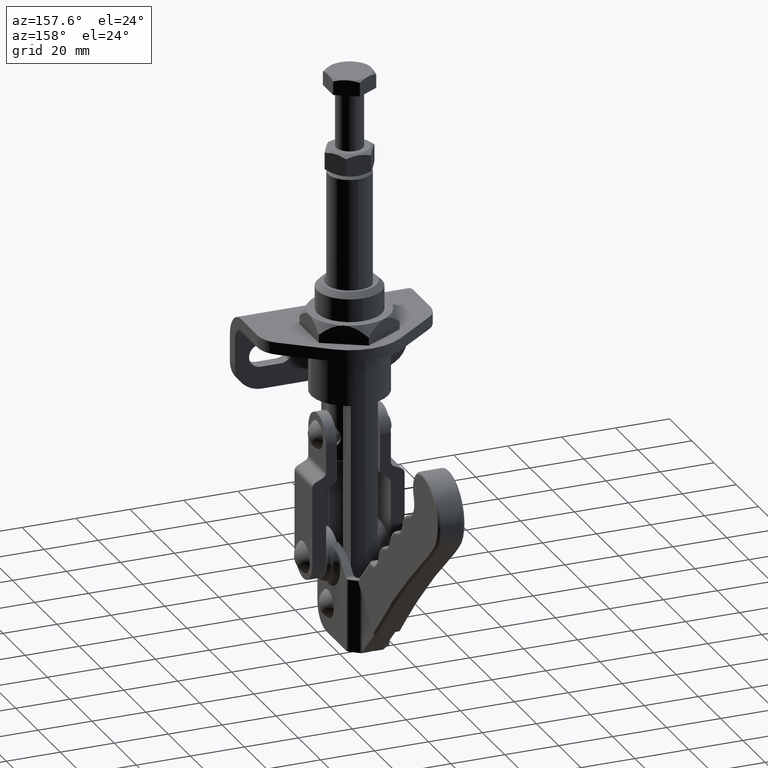
[diagram: clean part render]
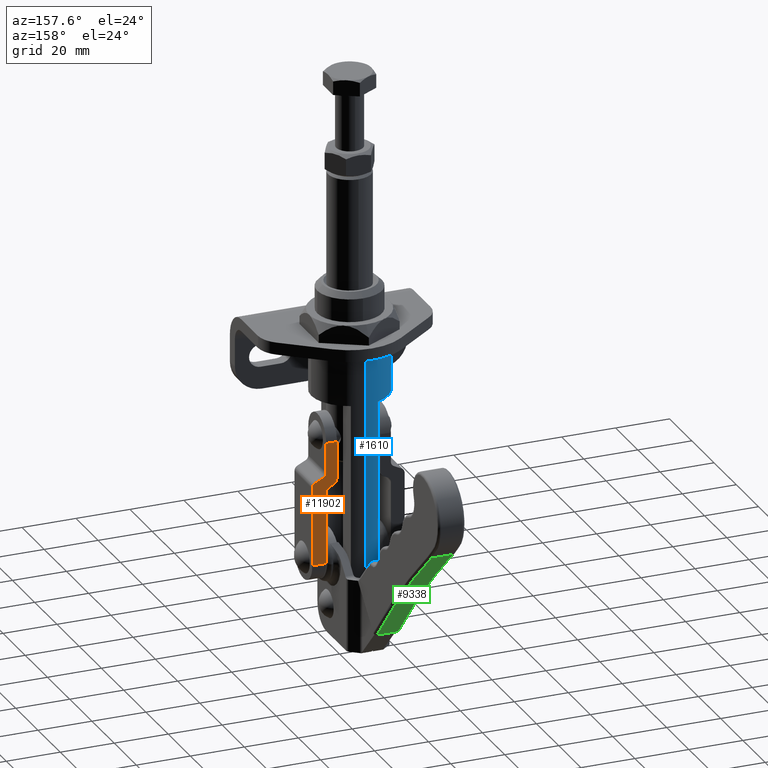
[diagram: same view with three faces highlighted in distinct colors, each labeled with its STEP entity id]
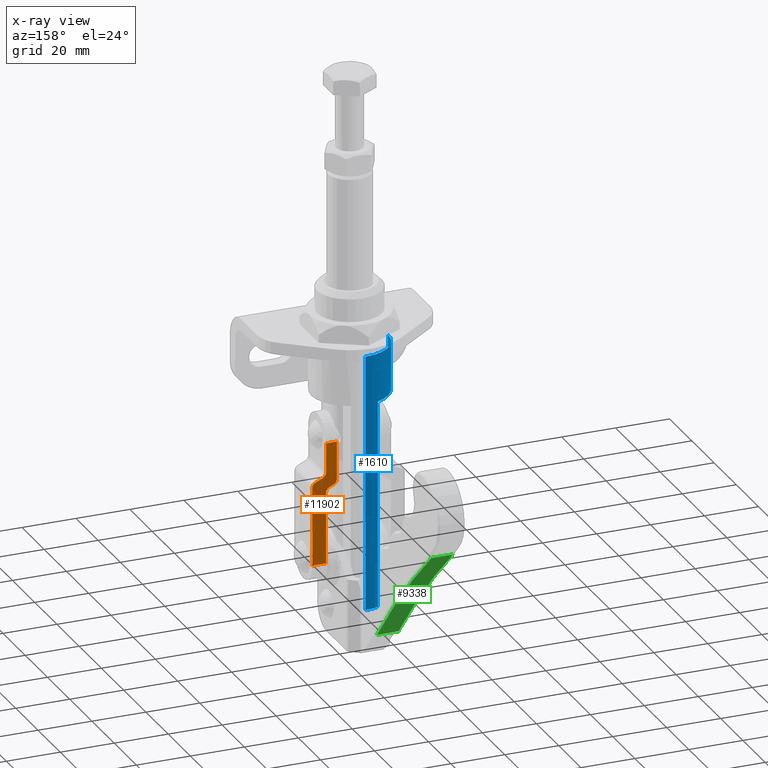
[diagram: x-ray of the same camera — body ghosted, the three highlighted faces saturated]
A machine part, auxiliary view with three faces highlighted in distinct colors.
The next image is the same camera in x-ray (body ghosted, the three faces saturated) — at least one of them is partly hidden behind the body in this view.
Their STEP definitions:

[orange] entity #11902 — the highlighted planar face has unit normal (-0, 1, 0).
#10155=CARTESIAN_POINT('',(11.999999999999995,5.917614629877216,-79.482214011970498));
#10156=VERTEX_POINT('',#10155);
#10164=CARTESIAN_POINT('',(17.099999999999916,5.917614629877216,-79.482214011970498));
#10165=VERTEX_POINT('',#10164);
#10166=CARTESIAN_POINT('',(11.999999999999995,5.917614629877216,-79.482214011970498));
#10167=DIRECTION('',(1.0,0.0,0.0));
#10168=VECTOR('',#10167,5.099999999999922);
#10169=LINE('',#10166,#10168);
#10170=EDGE_CURVE('',#10156,#10165,#10169,.T.);
#11311=CARTESIAN_POINT('',(8.305367358774088,7.296457354299946,-49.595314481743422));
#11312=VERTEX_POINT('',#11311);
#11319=CARTESIAN_POINT('',(9.128220211291660,7.262453801740220,-50.332353406504630));
#11320=VERTEX_POINT('',#11319);
#11321=CARTESIAN_POINT('',(9.999999999999830,7.345409203869990,-48.534265977802391));
#11322=DIRECTION('',(-3.122502E-017,-0.998937460390203,0.046086334516543));
#11323=DIRECTION('',(-0.744527728718017,0.030766846925521,0.666882195219105));
#11324=AXIS2_PLACEMENT_3D('',#11321,#11322,#11323);
#11325=CIRCLE('',#11324,1.999999999999890);
#11326=EDGE_CURVE('',#11312,#11320,#11325,.T.);
#11353=CARTESIAN_POINT('',(16.794632641225824,7.306129356875594,-49.385670434518573));
#11354=VERTEX_POINT('',#11353);
#11361=CARTESIAN_POINT('',(15.971779788708000,7.340132909435333,-48.648631509757116));
#11362=VERTEX_POINT('',#11361);
#11363=CARTESIAN_POINT('',(15.100000000000051,7.257177507305549,-50.446718938459640));
#11364=DIRECTION('',(-3.122502E-017,-0.998937460390203,0.046086334516543));
#11365=DIRECTION('',(0.744527728718073,-0.030766846925518,-0.666882195219043));
#11366=AXIS2_PLACEMENT_3D('',#11363,#11364,#11365);
#11367=CIRCLE('',#11366,1.999999999999938);
#11368=EDGE_CURVE('',#11354,#11362,#11367,.T.);
#11393=CARTESIAN_POINT('',(11.694632641225777,7.189532900033186,-51.912939520039885));
#11394=VERTEX_POINT('',#11393);
#11412=CARTESIAN_POINT('',(10.871779788708078,7.223536452592913,-51.175900595278669));
#11413=VERTEX_POINT('',#11412);
#11420=CARTESIAN_POINT('',(9.999999999999842,7.140581050463137,-52.973988023980993));
#11421=DIRECTION('',(3.122502E-017,0.998937460390203,-0.046086334516543));
#11422=DIRECTION('',(-0.744527728717995,0.030766846925522,0.666882195219129));
#11423=AXIS2_PLACEMENT_3D('',#11420,#11421,#11422);
#11424=CIRCLE('',#11423,2.000000000000211);
#11425=EDGE_CURVE('',#11413,#11394,#11424,.T.);
#11435=CARTESIAN_POINT('',(12.305367358774093,7.437606504733410,-46.535857153462587));
#11436=VERTEX_POINT('',#11435);
#11454=CARTESIAN_POINT('',(13.128220211291666,7.403602952173671,-47.272896078224051));
#11455=VERTEX_POINT('',#11454);
#11462=CARTESIAN_POINT('',(13.999999999999886,7.486558354303456,-45.474808649521492));
#11463=DIRECTION('',(2.428613E-017,0.998937460390203,-0.046086334516543));
#11464=DIRECTION('',(0.744527728718035,-0.030766846925520,-0.666882195219084));
#11465=AXIS2_PLACEMENT_3D('',#11462,#11463,#11464);
#11466=CIRCLE('',#11465,1.999999999999965);
#11467=EDGE_CURVE('',#11455,#11436,#11466,.T.);
#11478=CARTESIAN_POINT('',(12.0,7.486558354303456,-45.474808649521506));
#11479=VERTEX_POINT('',#11478);
#11480=CARTESIAN_POINT('',(13.999999999999860,7.486558354303456,-45.474808649521520));
#11481=DIRECTION('',(3.469447E-017,0.998937460390203,-0.046086334516543));
#11482=DIRECTION('',(0.276300270889376,-0.044292256222259,-0.960050184284759));
#11483=AXIS2_PLACEMENT_3D('',#11480,#11481,#11482);
#11484=CIRCLE('',#11483,1.999999999999927);
#11485=EDGE_CURVE('',#11436,#11479,#11484,.T.);
#11518=CARTESIAN_POINT('',(15.971779788708000,7.340132909435333,-48.648631509757116));
#11519=DIRECTION('',(-0.900000000000029,0.020088567483579,0.435426744075746));
#11520=VECTOR('',#11519,3.159510641573603);
#11521=LINE('',#11518,#11520);
#11522=EDGE_CURVE('',#11362,#11455,#11521,.T.);
#11533=CARTESIAN_POINT('',(11.999999999999996,7.140581050463140,-52.973988023980951));
#11534=VERTEX_POINT('',#11533);
#11535=CARTESIAN_POINT('',(9.999999999999872,7.140581050463140,-52.973988023980951));
#11536=DIRECTION('',(3.469447E-017,0.998937460390204,-0.046086334516543));
#11537=DIRECTION('',(-0.276300270889377,0.044292256222259,0.960050184284759));
#11538=AXIS2_PLACEMENT_3D('',#11535,#11536,#11537);
#11539=CIRCLE('',#11538,2.000000000000159);
#11540=EDGE_CURVE('',#11394,#11534,#11539,.T.);
#11573=CARTESIAN_POINT('',(9.128220211291660,7.262453801740220,-50.332353406504630));
#11574=DIRECTION('',(0.899999999999996,-0.020088567483582,-0.435426744075814));
#11575=VECTOR('',#11574,1.937288419351583);
#11576=LINE('',#11573,#11575);
#11577=EDGE_CURVE('',#11320,#11413,#11576,.T.);
#11597=CARTESIAN_POINT('',(17.099999999999920,7.257177507305547,-50.446718938459647));
#11598=VERTEX_POINT('',#11597);
#11605=CARTESIAN_POINT('',(15.100000000000058,7.257177507305547,-50.446718938459647));
#11606=DIRECTION('',(-3.642919E-017,-0.998937460390204,0.046086334516543));
#11607=DIRECTION('',(0.276300270889378,-0.044292256222259,-0.960050184284758));
#11608=AXIS2_PLACEMENT_3D('',#11605,#11606,#11607);
#11609=CIRCLE('',#11608,1.999999999999933);
#11610=EDGE_CURVE('',#11598,#11354,#11609,.T.);
#11637=CARTESIAN_POINT('',(17.099999999999916,5.917614629877216,-79.482214011970498));
#11638=DIRECTION('',(1.222276E-016,0.046086334516543,0.998937460390203));
#11639=VECTOR('',#11638,29.066379252780301);
#11640=LINE('',#11637,#11639);
#11641=EDGE_CURVE('',#10165,#11598,#11640,.T.);
#11673=CARTESIAN_POINT('',(11.999999999999996,7.140581050463140,-52.973988023980951));
#11674=DIRECTION('',(-6.694033E-017,-0.046086334516543,-0.998937460390203));
#11675=VECTOR('',#11674,26.536421987453494);
#11676=LINE('',#11673,#11675);
#11677=EDGE_CURVE('',#11534,#10156,#11676,.T.);
#11727=CARTESIAN_POINT('',(12.000000000000002,7.991499683121635,-34.530028294411501));
#11728=VERTEX_POINT('',#11727);
#11729=CARTESIAN_POINT('',(12.0,7.486558354303456,-45.474808649521506));
#11730=DIRECTION('',(1.621293E-016,0.046086334516543,0.998937460390203));
#11731=VECTOR('',#11730,10.956421987453320);
#11732=LINE('',#11729,#11731);
#11733=EDGE_CURVE('',#11479,#11728,#11732,.T.);
#11849=CARTESIAN_POINT('',(7.999999999999997,7.345409203869993,-48.534265977802349));
#11850=VERTEX_POINT('',#11849);
#11857=CARTESIAN_POINT('',(9.999999999999885,7.345409203869991,-48.534265977802349));
#11858=DIRECTION('',(-3.469447E-017,-0.998937460390204,0.046086334516543));
#11859=DIRECTION('',(-0.276300270889376,0.044292256222259,0.960050184284759));
#11860=AXIS2_PLACEMENT_3D('',#11857,#11858,#11859);
#11861=CIRCLE('',#11860,1.999999999999962);
#11862=EDGE_CURVE('',#11850,#11312,#11861,.T.);
#11867=CARTESIAN_POINT('',(12.549999999999956,6.954557156499426,-57.006121153190996));
#11868=DIRECTION('',(3.200715E-017,0.998937460390203,-0.046086334516543));
#11869=DIRECTION('',(1.0,0.0,0.0));
#11870=AXIS2_PLACEMENT_3D('',#11867,#11868,#11869);
#11871=PLANE('',#11870);
#11872=ORIENTED_EDGE('',*,*,#11610,.F.);
#11873=ORIENTED_EDGE('',*,*,#11641,.F.);
#11874=ORIENTED_EDGE('',*,*,#10170,.F.);
#11875=ORIENTED_EDGE('',*,*,#11677,.F.);
#11876=ORIENTED_EDGE('',*,*,#11540,.F.);
#11877=ORIENTED_EDGE('',*,*,#11425,.F.);
#11878=ORIENTED_EDGE('',*,*,#11577,.F.);
#11879=ORIENTED_EDGE('',*,*,#11326,.F.);
#11880=ORIENTED_EDGE('',*,*,#11862,.F.);
#11881=CARTESIAN_POINT('',(7.999999999999998,7.991499683121635,-34.530028294411501));
#11882=VERTEX_POINT('',#11881);
#11883=CARTESIAN_POINT('',(7.999999999999997,7.345409203869993,-48.534265977802349));
#11884=DIRECTION('',(6.335473E-017,0.046086334516543,0.998937460390204));
#11885=VECTOR('',#11884,14.019133568101983);
#11886=LINE('',#11883,#11885);
#11887=EDGE_CURVE('',#11850,#11882,#11886,.T.);
#11888=ORIENTED_EDGE('',*,*,#11887,.T.);
#11889=CARTESIAN_POINT('',(7.999999999999998,7.991499683121635,-34.530028294411501));
#11890=DIRECTION('',(1.0,0.0,0.0));
#11891=VECTOR('',#11890,4.000000000000004);
#11892=LINE('',#11889,#11891);
#11893=EDGE_CURVE('',#11882,#11728,#11892,.T.);
#11894=ORIENTED_EDGE('',*,*,#11893,.T.);
#11895=ORIENTED_EDGE('',*,*,#11733,.F.);
#11896=ORIENTED_EDGE('',*,*,#11485,.F.);
#11897=ORIENTED_EDGE('',*,*,#11467,.F.);
#11898=ORIENTED_EDGE('',*,*,#11522,.F.);
#11899=ORIENTED_EDGE('',*,*,#11368,.F.);
#11900=EDGE_LOOP('',(#11872,#11873,#11874,#11875,#11876,#11877,#11878,#11879,#11880,#11888,#11894,#11895,#11896,#11897,#11898,#11899));
#11901=FACE_OUTER_BOUND('',#11900,.T.);
#11902=ADVANCED_FACE('',(#11901),#11871,.T.);

[blue] entity #1610 — the highlighted cylindrical surface (partial cylindrical patch) has radius 14.25 mm, axis along (0, 0, -1).
#1552=CARTESIAN_POINT('',(4.440892E-015,-3.330669E-015,-77.000000000000057));
#1553=DIRECTION('',(0.0,0.0,-1.0));
#1554=DIRECTION('',(0.0,-1.0,0.0));
#1555=AXIS2_PLACEMENT_3D('',#1552,#1553,#1554);
#1556=CYLINDRICAL_SURFACE('',#1555,14.249999999999901);
#1557=CARTESIAN_POINT('',(-5.075733E-015,14.249999999999897,-95.999999990820726));
#1558=VERTEX_POINT('',#1557);
#1559=CARTESIAN_POINT('',(6.060988E-015,14.249999999999897,-1.000000000897456));
#1560=VERTEX_POINT('',#1559);
#1561=CARTESIAN_POINT('',(-5.075733E-015,14.249999999999897,-95.999999990820726));
#1562=DIRECTION('',(0.0,0.0,1.0));
#1563=VECTOR('',#1562,94.999999989923268);
#1564=LINE('',#1561,#1563);
#1565=EDGE_CURVE('',#1558,#1560,#1564,.T.);
#1566=ORIENTED_EDGE('',*,*,#1565,.F.);
#1567=CARTESIAN_POINT('',(-5.000000000000066,13.344006145082417,-96.000000000000057));
#1568=VERTEX_POINT('',#1567);
#1569=CARTESIAN_POINT('',(4.440892E-015,-3.330669E-015,-95.999999990820726));
#1570=DIRECTION('',(0.0,0.0,1.0));
#1571=DIRECTION('',(0.0,-1.0,0.0));
#1572=AXIS2_PLACEMENT_3D('',#1569,#1570,#1571);
#1573=CIRCLE('',#1572,14.249999999999901);
#1574=EDGE_CURVE('',#1558,#1568,#1573,.T.);
#1575=ORIENTED_EDGE('',*,*,#1574,.T.);
#1576=CARTESIAN_POINT('',(-5.000000000000066,13.344006145082417,-18.999999999999947));
#1577=VERTEX_POINT('',#1576);
#1578=CARTESIAN_POINT('',(-5.000000000000066,13.344006145082417,-18.999999999999947));
#1579=DIRECTION('',(0.0,0.0,-1.0));
#1580=VECTOR('',#1579,77.000000000000114);
#1581=LINE('',#1578,#1580);
#1582=EDGE_CURVE('',#1577,#1568,#1581,.T.);
#1583=ORIENTED_EDGE('',*,*,#1582,.F.);
#1584=CARTESIAN_POINT('',(-14.249999999999897,0.0,-18.999999999999947));
#1585=VERTEX_POINT('',#1584);
#1586=CARTESIAN_POINT('',(4.440892E-015,-3.330669E-015,-18.999999999999943));
#1587=DIRECTION('',(0.0,0.0,-1.0));
#1588=DIRECTION('',(0.0,-1.0,0.0));
#1589=AXIS2_PLACEMENT_3D('',#1586,#1587,#1588);
#1590=CIRCLE('',#1589,14.249999999999901);
#1591=EDGE_CURVE('',#1585,#1577,#1590,.T.);
#1592=ORIENTED_EDGE('',*,*,#1591,.F.);
#1593=CARTESIAN_POINT('',(-14.249999999999897,0.0,-1.000000000000064));
#1594=VERTEX_POINT('',#1593);
#1595=CARTESIAN_POINT('',(-14.249999999999897,0.0,-18.999999999999947));
#1596=DIRECTION('',(0.0,0.0,1.0));
#1597=VECTOR('',#1596,17.999999999999883);
#1598=LINE('',#1595,#1597);
#1599=EDGE_CURVE('',#1585,#1594,#1598,.T.);
#1600=ORIENTED_EDGE('',*,*,#1599,.T.);
#1601=CARTESIAN_POINT('',(4.440892E-015,-3.330669E-015,-1.000000000897456));
#1602=DIRECTION('',(0.0,0.0,1.0));
#1603=DIRECTION('',(0.0,-1.0,0.0));
#1604=AXIS2_PLACEMENT_3D('',#1601,#1602,#1603);
#1605=CIRCLE('',#1604,14.249999999999901);
#1606=EDGE_CURVE('',#1560,#1594,#1605,.T.);
#1607=ORIENTED_EDGE('',*,*,#1606,.F.);
#1608=EDGE_LOOP('',(#1566,#1575,#1583,#1592,#1600,#1607));
#1609=FACE_OUTER_BOUND('',#1608,.T.);
#1610=ADVANCED_FACE('',(#1609),#1556,.T.);

[green] entity #9338 — the highlighted cylindrical surface (partial cylindrical patch) has radius 449 mm, axis along (-1, 0, 0).
#8192=CARTESIAN_POINT('',(-4.000000000000012,33.792322590634626,-92.734902266982431));
#8193=VERTEX_POINT('',#8192);
#8244=CARTESIAN_POINT('',(-4.000000000000002,77.169686472056014,-38.651522185179097));
#8245=VERTEX_POINT('',#8244);
#8274=CARTESIAN_POINT('',(-3.999999999999753,404.695803182224380,-345.779578332350750));
#8275=DIRECTION('',(-1.000000000000000,4.782659E-016,-3.262915E-016));
#8276=DIRECTION('',(-5.789684E-016,-0.826065658333197,0.563573888787036));
#8277=AXIS2_PLACEMENT_3D('',#8274,#8275,#8276);
#8278=CIRCLE('',#8277,448.999999999980900);
#8279=EDGE_CURVE('',#8193,#8245,#8278,.T.);
#8646=CARTESIAN_POINT('',(4.000000000000002,77.169686472055020,-38.651522185180355));
#8647=VERTEX_POINT('',#8646);
#8654=CARTESIAN_POINT('',(-4.000000000000002,77.169686472056014,-38.651522185179097));
#8655=DIRECTION('',(1.0,-1.243450E-013,-1.572076E-013));
#8656=VECTOR('',#8655,8.000000000000004);
#8657=LINE('',#8654,#8656);
#8658=EDGE_CURVE('',#8245,#8647,#8657,.T.);
#8835=CARTESIAN_POINT('',(3.999999999999990,33.792322590634633,-92.734902266982573));
#8836=VERTEX_POINT('',#8835);
#8877=CARTESIAN_POINT('',(3.999999999999998,404.695803182249850,-345.779578332369620));
#8878=DIRECTION('',(1.000000000000000,5.262355E-018,-4.934619E-018));
#8879=DIRECTION('',(7.214073E-018,-0.729456830089498,0.684026851107310));
#8880=AXIS2_PLACEMENT_3D('',#8877,#8878,#8879);
#8881=CIRCLE('',#8880,449.000000000012510);
#8882=EDGE_CURVE('',#8647,#8836,#8881,.T.);
#9322=CARTESIAN_POINT('',(2.399999999999997,404.695803182239330,-345.779578332363030));
#9323=DIRECTION('',(-1.0,1.049442E-016,1.224606E-016));
#9324=DIRECTION('',(-1.611905E-016,-0.625667817591642,-0.780089598719347));
#9325=AXIS2_PLACEMENT_3D('',#9322,#9323,#9324);
#9326=CYLINDRICAL_SURFACE('',#9325,449.000000000000110);
#9327=ORIENTED_EDGE('',*,*,#8882,.T.);
#9328=CARTESIAN_POINT('',(3.999999999999990,33.792322590634633,-92.734902266982573));
#9329=DIRECTION('',(-1.0,0.0,0.0));
#9330=VECTOR('',#9329,8.000000000000002);
#9331=LINE('',#9328,#9330);
#9332=EDGE_CURVE('',#8836,#8193,#9331,.T.);
#9333=ORIENTED_EDGE('',*,*,#9332,.T.);
#9334=ORIENTED_EDGE('',*,*,#8279,.T.);
#9335=ORIENTED_EDGE('',*,*,#8658,.T.);
#9336=EDGE_LOOP('',(#9327,#9333,#9334,#9335));
#9337=FACE_OUTER_BOUND('',#9336,.T.);
#9338=ADVANCED_FACE('',(#9337),#9326,.F.);